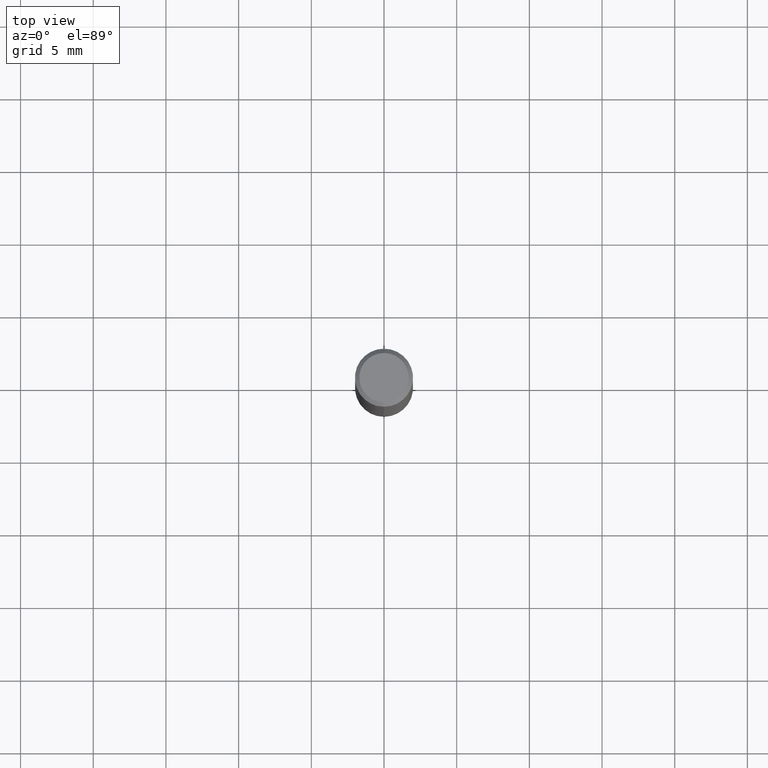
[diagram: clean part render]
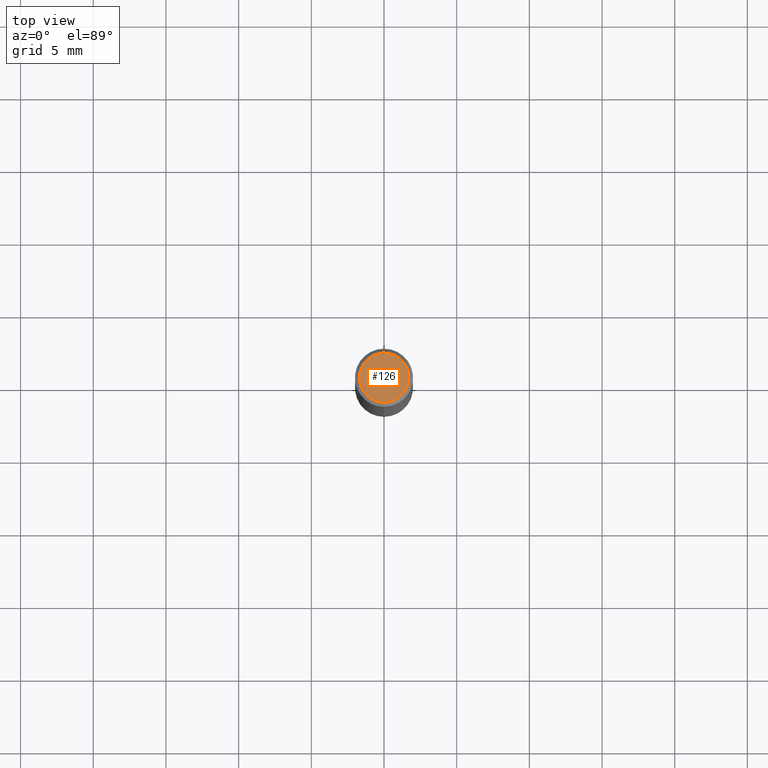
[diagram: same view with one face highlighted and labeled with its STEP entity id]
A machine part, top view. The second image highlights one B-rep face of the part: STEP entity #126.
In plain terms, the highlighted planar face has unit normal (-0, 0, 1).
Its self-contained STEP definition (entity closure, byte-faithful):
#86=EDGE_CURVE('',#154,#134,#211,.T.);
#116=EDGE_CURVE('',#134,#154,#244,.T.);
#126=ADVANCED_FACE('',(#255),#256,.T.);
#134=VERTEX_POINT('',#266);
#154=VERTEX_POINT('',#290);
#211=CIRCLE('',#344,1.7);
#244=CIRCLE('',#390,1.7);
#255=FACE_OUTER_BOUND('',#403,.T.);
#256=PLANE('',#404);
#266=CARTESIAN_POINT('',(2.08183080149804E-016,-1.7,0.0));
#290=CARTESIAN_POINT('',(0.0,1.7,0.0));
#344=AXIS2_PLACEMENT_3D('',#493,#494,#495);
#390=AXIS2_PLACEMENT_3D('',#526,#527,#528);
#403=EDGE_LOOP('',(#544,#545));
#404=AXIS2_PLACEMENT_3D('',#546,#547,#548);
#493=CARTESIAN_POINT('',(0.0,0.0,0.0));
#494=DIRECTION('',(0.0,0.0,-1.0));
#495=DIRECTION('',(0.0,1.0,0.0));
#526=CARTESIAN_POINT('',(0.0,0.0,0.0));
#527=DIRECTION('',(0.0,0.0,-1.0));
#528=DIRECTION('',(0.0,1.0,0.0));
#544=ORIENTED_EDGE('',*,*,#86,.F.);
#545=ORIENTED_EDGE('',*,*,#116,.F.);
#546=CARTESIAN_POINT('',(0.0,0.85,0.0));
#547=DIRECTION('',(-0.0,0.0,1.0));
#548=DIRECTION('',(0.0,-1.0,0.0));